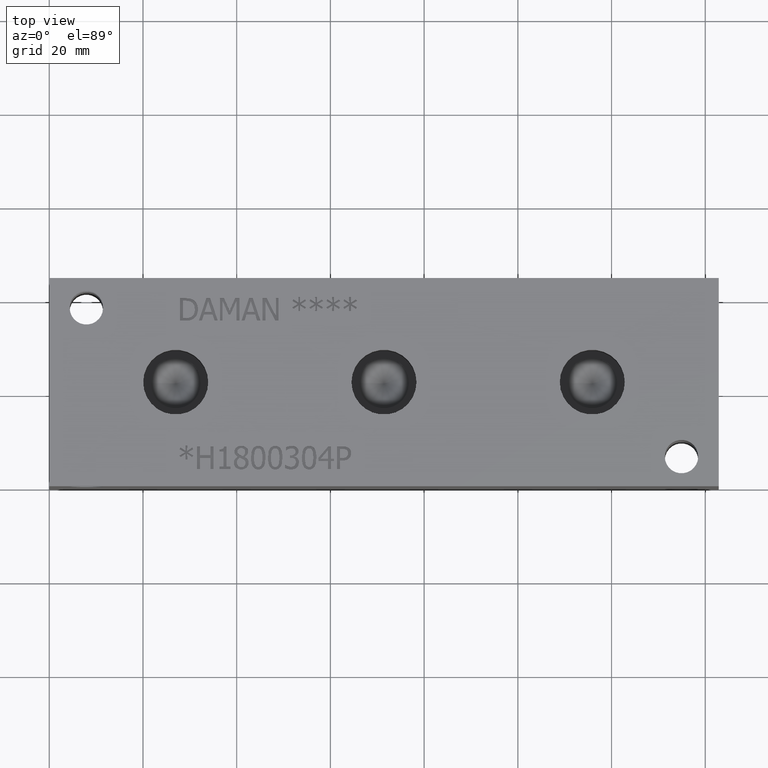
[diagram: clean part render]
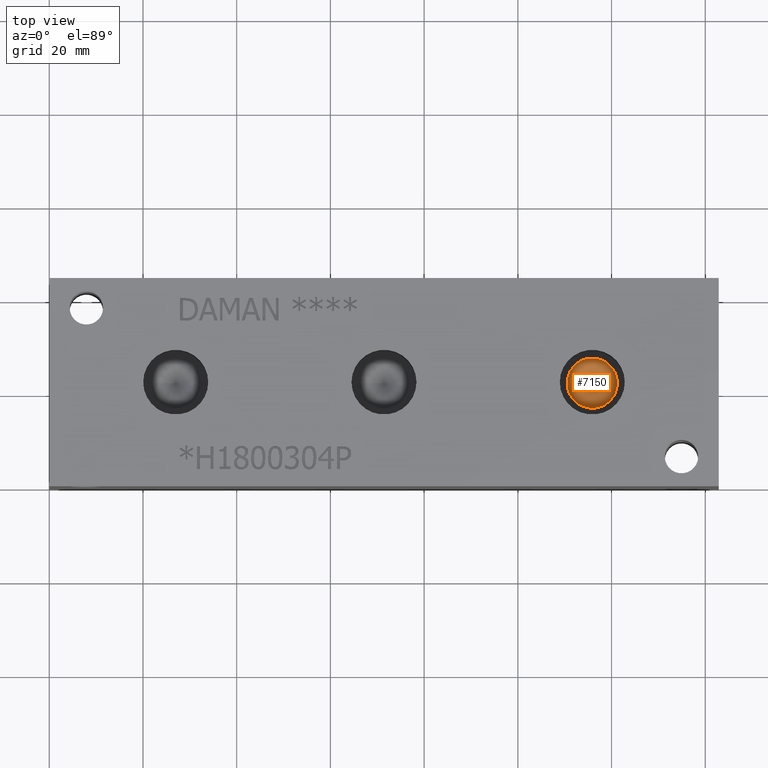
[diagram: same view with one face highlighted and labeled with its STEP entity id]
A machine part, top view. The second image highlights one B-rep face of the part: STEP entity #7150.
In plain terms, the highlighted conical surface has half-angle 60 deg.
Its self-contained STEP definition (entity closure, byte-faithful):
#53=CONICAL_SURFACE('',#7503,2.6797,1.0471975511966);
#115=CIRCLE('',#7504,5.3594);
#116=CIRCLE('',#7505,5.3594);
#797=FACE_OUTER_BOUND('',#1199,.T.);
#1199=EDGE_LOOP('',(#6184,#6185,#6186,#6187));
#1930=LINE('',#12080,#2650);
#2650=VECTOR('',#8889,2.6797);
#3311=VERTEX_POINT('',#12076);
#3312=VERTEX_POINT('',#12077);
#3313=VERTEX_POINT('',#12079);
#4281=EDGE_CURVE('',#3311,#3312,#115,.T.);
#4282=EDGE_CURVE('',#3312,#3313,#1930,.T.);
#4283=EDGE_CURVE('',#3312,#3311,#116,.T.);
#6184=ORIENTED_EDGE('',*,*,#4281,.T.);
#6185=ORIENTED_EDGE('',*,*,#4282,.T.);
#6186=ORIENTED_EDGE('',*,*,#4282,.F.);
#6187=ORIENTED_EDGE('',*,*,#4283,.T.);
#7150=ADVANCED_FACE('',(#797),#53,.F.);
#7503=AXIS2_PLACEMENT_3D('',#12075,#8885,#8886);
#7504=AXIS2_PLACEMENT_3D('',#12078,#8887,#8888);
#7505=AXIS2_PLACEMENT_3D('',#12081,#8890,#8891);
#8885=DIRECTION('center_axis',(0.,0.,1.));
#8886=DIRECTION('ref_axis',(1.,0.,0.));
#8887=DIRECTION('center_axis',(0.,0.,1.));
#8888=DIRECTION('ref_axis',(1.,0.,0.));
#8889=DIRECTION('',(0.866025403784439,1.06057523872491E-16,-0.5));
#8890=DIRECTION('center_axis',(0.,0.,1.));
#8891=DIRECTION('ref_axis',(1.,0.,0.));
#12075=CARTESIAN_POINT('Origin',(115.8748,22.225,31.1888444836526));
#12076=CARTESIAN_POINT('',(121.2342,22.225,32.73597));
#12077=CARTESIAN_POINT('',(110.5154,22.225,32.73597));
#12078=CARTESIAN_POINT('Origin',(115.8748,22.225,32.73597));
#12079=CARTESIAN_POINT('',(115.8748,22.225,29.6417189673051));
#12080=CARTESIAN_POINT('',(113.1951,22.225,31.1888444836526));
#12081=CARTESIAN_POINT('Origin',(115.8748,22.225,32.73597));